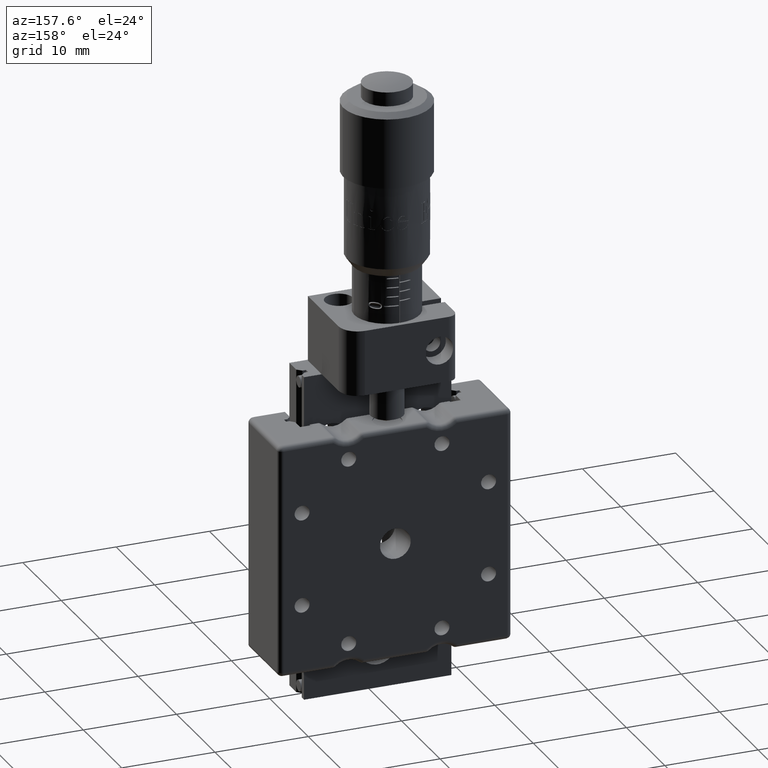
[diagram: clean part render]
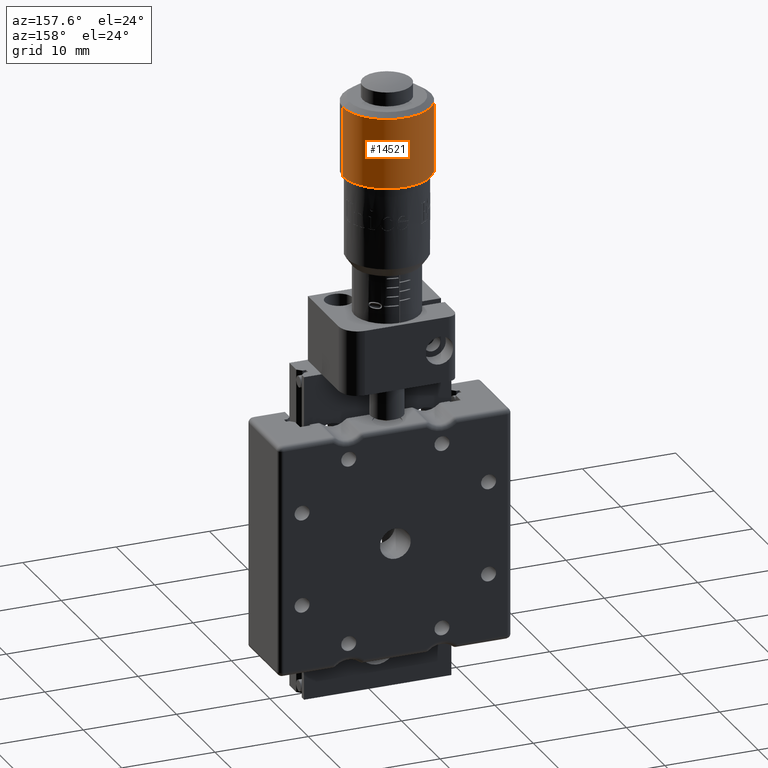
[diagram: same view with one face highlighted and labeled with its STEP entity id]
A machine part, auxiliary view. The second image highlights one B-rep face of the part: STEP entity #14521.
In plain terms, the highlighted cylindrical surface (partial cylindrical patch) has radius 4.7 mm, axis along (0, 0, 1).
Its self-contained STEP definition (entity closure, byte-faithful):
#116 = EDGE_CURVE ( 'NONE', #4223, #24467, #28129, .T. ) ;
#948 = FACE_OUTER_BOUND ( 'NONE', #33284, .T. ) ;
#2647 = ORIENTED_EDGE ( 'NONE', *, *, #116, .F. ) ;
#4223 = VERTEX_POINT ( 'NONE', #27425 ) ;
#4380 = CIRCLE ( 'NONE', #19256, 4.700000000000008200 ) ;
#5506 = CIRCLE ( 'NONE', #22964, 4.700000000000008200 ) ;
#7483 = DIRECTION ( 'NONE',  ( 1.110223024626043800E-016, 1.762506864451433400E-016, 1.000000000000000000 ) ) ;
#7940 = EDGE_CURVE ( 'NONE', #32780, #15454, #20450, .T. ) ;
#9084 = DIRECTION ( 'NONE',  ( 1.110223024626043800E-016, 1.762506864451433400E-016, 1.000000000000000000 ) ) ;
#11073 = ORIENTED_EDGE ( 'NONE', *, *, #7940, .T. ) ;
#11357 = DIRECTION ( 'NONE',  ( 1.110223024626043800E-016, 1.762506864451433400E-016, 1.000000000000000000 ) ) ;
#12518 = CYLINDRICAL_SURFACE ( 'NONE', #17830, 4.700000000000008200 ) ;
#12743 = CARTESIAN_POINT ( 'NONE',  ( 4.697990897784889000, 6.062589940940559300, 83.73849299920763700 ) ) ;
#14521 = ADVANCED_FACE ( 'NONE', ( #948 ), #12518, .T. ) ;
#14970 = DIRECTION ( 'NONE',  ( 1.110223024626043800E-016, 1.762506864451433400E-016, 1.000000000000000000 ) ) ;
#15454 = VERTEX_POINT ( 'NONE', #20053 ) ;
#15551 = ORIENTED_EDGE ( 'NONE', *, *, #18556, .F. ) ;
#15827 = CARTESIAN_POINT ( 'NONE',  ( 2.650274643751221500E-014, 6.199999999999916700, 39.69746993000000400 ) ) ;
#17830 = AXIS2_PLACEMENT_3D ( 'NONE', #25079, #9084, #28084 ) ;
#18556 = EDGE_CURVE ( 'NONE', #24467, #15454, #5506, .T. ) ;
#19256 = AXIS2_PLACEMENT_3D ( 'NONE', #15827, #7483, #23964 ) ;
#20053 = CARTESIAN_POINT ( 'NONE',  ( -4.697990897784822400, 6.337410059059283000, 47.19746993000000400 ) ) ;
#20436 = DIRECTION ( 'NONE',  ( 0.9995725314435850400, -0.02923618277858828700, 0.0000000000000000000 ) ) ;
#20450 = LINE ( 'NONE', #27983, #24623 ) ;
#21367 = ORIENTED_EDGE ( 'NONE', *, *, #25313, .T. ) ;
#22964 = AXIS2_PLACEMENT_3D ( 'NONE', #28168, #14970, #20436 ) ;
#23405 = DIRECTION ( 'NONE',  ( 1.110223024626043800E-016, 1.762506864451433400E-016, 1.000000000000000000 ) ) ;
#23964 = DIRECTION ( 'NONE',  ( 0.9995725314435850400, -0.02923618277858828700, 0.0000000000000000000 ) ) ;
#24467 = VERTEX_POINT ( 'NONE', #26786 ) ;
#24623 = VECTOR ( 'NONE', #11357, 1000.000000000000000 ) ;
#24657 = CARTESIAN_POINT ( 'NONE',  ( -4.697990897784822400, 6.337410059059283000, 39.69746993000000400 ) ) ;
#25079 = CARTESIAN_POINT ( 'NONE',  ( 3.136358975008251200E-014, 6.199999999999924700, 83.73849299920763700 ) ) ;
#25313 = EDGE_CURVE ( 'NONE', #4223, #32780, #4380, .T. ) ;
#26363 = VECTOR ( 'NONE', #23405, 1000.000000000000000 ) ;
#26786 = CARTESIAN_POINT ( 'NONE',  ( 4.697990897784884500, 6.062589940940545900, 47.19746993000000400 ) ) ;
#27425 = CARTESIAN_POINT ( 'NONE',  ( 4.697990897784884500, 6.062589940940551300, 39.69746993000000400 ) ) ;
#27983 = CARTESIAN_POINT ( 'NONE',  ( -4.697990897784826800, 6.337410059059290100, 83.73849299920763700 ) ) ;
#28084 = DIRECTION ( 'NONE',  ( 0.9995725314435850400, -0.02923618277858828700, 0.0000000000000000000 ) ) ;
#28129 = LINE ( 'NONE', #12743, #26363 ) ;
#28168 = CARTESIAN_POINT ( 'NONE',  ( 2.712265876058813000E-014, 6.199999999999911400, 47.19746993000000400 ) ) ;
#32780 = VERTEX_POINT ( 'NONE', #24657 ) ;
#33284 = EDGE_LOOP ( 'NONE', ( #21367, #11073, #15551, #2647 ) ) ;